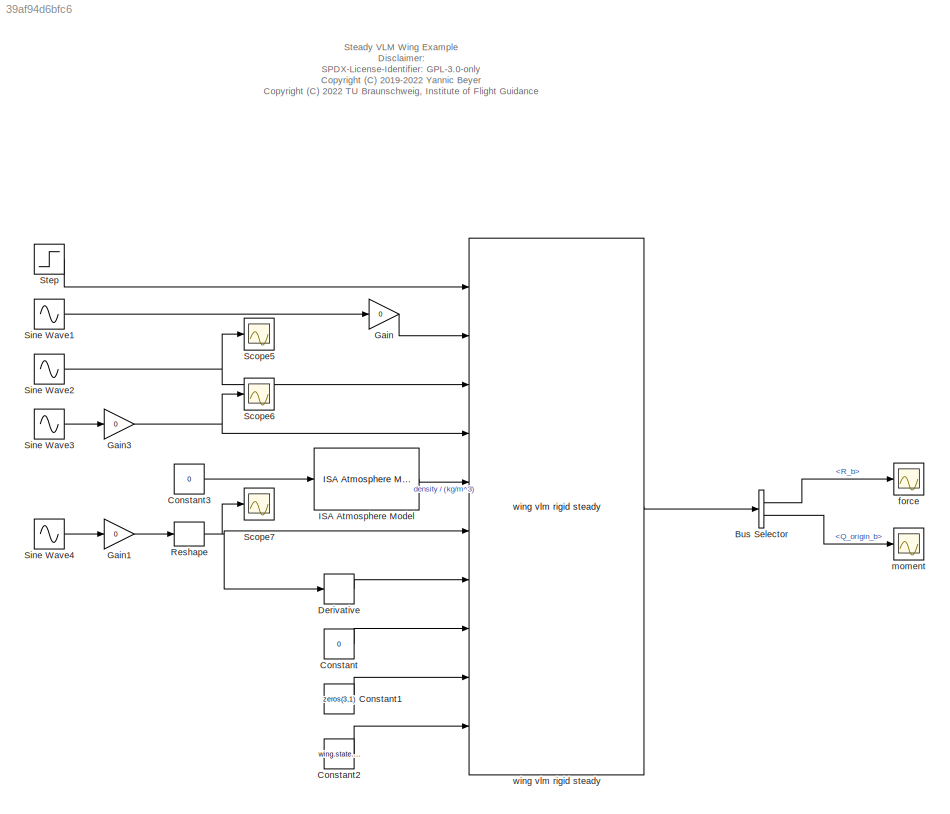
MODEL slx_39af94d6bfc6
KIND model
CONFIG AbsTol = auto
CONFIG EnableMultiTasking = off
CONFIG FixedStep = 0.01
CONFIG MaxStep = auto
CONFIG MinStep = auto
CONFIG RelTol = 1e-3
CONFIG SampleTimeConstraint = Unconstrained
CONFIG Solver = ode1
CONFIG SolverName = ode1
CONFIG StartTime = 0.0
CONFIG StopTime = 100
BLOCK [BusSelector] Bus Selector
  OutputAsBus = off
  OutputSignals = aero.force_glob.R_b,aero.force_glob.Q_origin_b
  Ports = [1, 2]
BLOCK [Constant] Constant
  Value = 0
BLOCK [Constant] Constant1
  Value = zeros(3,1)
  VectorParams1D = off
BLOCK [Constant] Constant2
  Value = wing.state.external.V_Wb
BLOCK [Constant] Constant3
  Value = 0
BLOCK [Derivative] Derivative
BLOCK [Gain] Gain
  Gain = 0
  OutDataTypeStr = Inherit: Inherit via internal rule
  ParamDataTypeStr = Inherit: Inherit via internal rule
  SaturateOnIntegerOverflow = off
BLOCK [Gain] Gain1
  Gain = 0
  OutDataTypeStr = Inherit: Inherit via internal rule
  ParamDataTypeStr = Inherit: Inherit via internal rule
  SaturateOnIntegerOverflow = off
BLOCK [Gain] Gain3
  Gain = 0
  OutDataTypeStr = Inherit: Inherit via internal rule
  ParamDataTypeStr = Inherit: Inherit via internal rule
  SaturateOnIntegerOverflow = off
BLOCK [Reference] ISA Atmosphere Model  REF=atmosphere_lib/ISA Atmosphere Model  (lib defined in slx_398a0eb2fa35)
  Ports = [1, 1]
  SourceBlock = atmosphere_lib/ISA Atmosphere Model
  SourceProductName = LADAC
BLOCK [Reshape] Reshape
  OutputDimensionality = Row vector (2-D)
  Ports = [1, 1]
BLOCK [Scope] Scope5
  Floating = off
  NumInputPorts = 1
  Ports = [1]
  ScopeSpecificationString = Simulink.scopes.TimeScopeBlockCfg('CurrentConfiguration', extmgr.ConfigurationSet(extmgr.Configuration('Core','General UI',true),extmgr.Configuration('Core','Source UI',true),extmgr.Configuration('Sources','WiredSimulink',true,'DataLoggingVariableName','ScopeData3'),extmgr.Configuration('Visuals','Time Domain',true,'SerializedDisplays',{struct('MinYLimReal','96.25','MaxYLimReal','103.75','YLabelRe...<+1399ch>
BLOCK [Scope] Scope6
  Floating = off
  NumInputPorts = 1
  Ports = [1]
  ScopeSpecificationString = Simulink.scopes.TimeScopeBlockCfg('CurrentConfiguration', extmgr.ConfigurationSet(extmgr.Configuration('Core','General UI',true),extmgr.Configuration('Core','Source UI',true),extmgr.Configuration('Sources','WiredSimulink',true,'DataLoggingVariableName','ScopeData4'),extmgr.Configuration('Visuals','Time Domain',true,'SerializedDisplays',{struct('MinYLimReal','-0.125','MaxYLimReal','0.125','YLabelRe...<+1408ch>
BLOCK [Scope] Scope7
  Floating = off
  NumInputPorts = 1
  Ports = [1]
  ScopeSpecificationString = Simulink.scopes.TimeScopeBlockCfg('CurrentConfiguration', extmgr.ConfigurationSet(extmgr.Configuration('Core','General UI',true),extmgr.Configuration('Core','Source UI',true),extmgr.Configuration('Sources','WiredSimulink',true,'DataLoggingVariableName','ScopeData5'),extmgr.Configuration('Visuals','Time Domain',true,'SerializedDisplays',{struct('MinYLimReal','-0.125','MaxYLimReal','0.125','YLabelRe...<+1424ch>
BLOCK [Sin] Sine Wave1
  Amplitude = 0.05
  Frequency = 0.3
  Ports = [0, 1]
  SampleTime = 0
BLOCK [Sin] Sine Wave2
  Amplitude = 3
  Bias = 100
  Frequency = 0.22
  Ports = [0, 1]
  SampleTime = 0
BLOCK [Sin] Sine Wave3
  Amplitude = [0.1;0.1;0.1]
  Frequency = [0.9;0.8;0.7]
  Ports = [0, 1]
  SampleTime = 0
BLOCK [Sin] Sine Wave4
  Amplitude = [0.1;0.1]
  Frequency = [0.9;0.8]*2.1
  Ports = [0, 1]
  SampleTime = 0
BLOCK [Step] Step
  After = 0.1
  SampleTime = 0
  Time = 0.01
BLOCK [Scope] force
  Floating = off
  NumInputPorts = 1
  Ports = [1]
  ScopeSpecificationString = Simulink.scopes.TimeScopeBlockCfg('CurrentConfiguration', extmgr.ConfigurationSet(extmgr.Configuration('Core','General UI',true),extmgr.Configuration('Core','Source UI',true),extmgr.Configuration('Sources','WiredSimulink',true,'DataLoggingVariableName','ScopeData1'),extmgr.Configuration('Visuals','Time Domain',true,'SerializedDisplays',{struct('MinYLimReal','-517.57478','MaxYLimReal','57.50831','Y...<+1454ch>
BLOCK [Scope] moment
  Floating = off
  NumInputPorts = 1
  Ports = [1]
  ScopeSpecificationString = Simulink.scopes.TimeScopeBlockCfg('CurrentConfiguration', extmgr.ConfigurationSet(extmgr.Configuration('Core','General UI',true),extmgr.Configuration('Core','Source UI',true),extmgr.Configuration('Sources','WiredSimulink',true,'DataLoggingVariableName','ScopeData2'),extmgr.Configuration('Visuals','Time Domain',true),extmgr.Configuration('Tools','Plot Navigation',true),extmgr.Configuration('Tools',...<+40ch>
BLOCK [Reference] wing vlm rigid steady  REF=vlm_wing_lib/wing vlm rigid steady  (lib defined in slx_96deaf3da9d4)
  Ports = [10, 1]
  SourceBlock = vlm_wing_lib/wing vlm rigid steady
  SourceProductName = LADAC
ANNOTATION (root): Steady VLM Wing Example Disclaimer: SPDX-License-Identifier: GPL-3.0-only <copyright redacted>
LINE Bus Selector:1 -> force:1
LINE Bus Selector:2 -> moment:1
LINE Constant1:1 -> wing vlm rigid steady:9
LINE Constant2:1 -> wing vlm rigid steady:10
LINE Constant3:1 -> ISA Atmosphere Model:1
LINE Constant:1 -> wing vlm rigid steady:8
LINE Derivative:1 -> wing vlm rigid steady:7
LINE Gain1:1 -> Reshape:1
NET Gain3:1 -> Scope6:1, wing vlm rigid steady:4
LINE Gain:1 -> wing vlm rigid steady:2
LINE ISA Atmosphere Model:1 -> wing vlm rigid steady:5
NET Reshape:1 -> Derivative:1, Scope7:1, wing vlm rigid steady:6
LINE Sine Wave1:1 -> Gain:1
NET Sine Wave2:1 -> Scope5:1, wing vlm rigid steady:3
LINE Sine Wave3:1 -> Gain3:1
LINE Sine Wave4:1 -> Gain1:1
LINE Step:1 -> wing vlm rigid steady:1
LINE wing vlm rigid steady:1 -> Bus Selector:1
note: NET lines group one-source signal fan-out (src -> all destinations, sorted); 1:1 wires keep LINE
